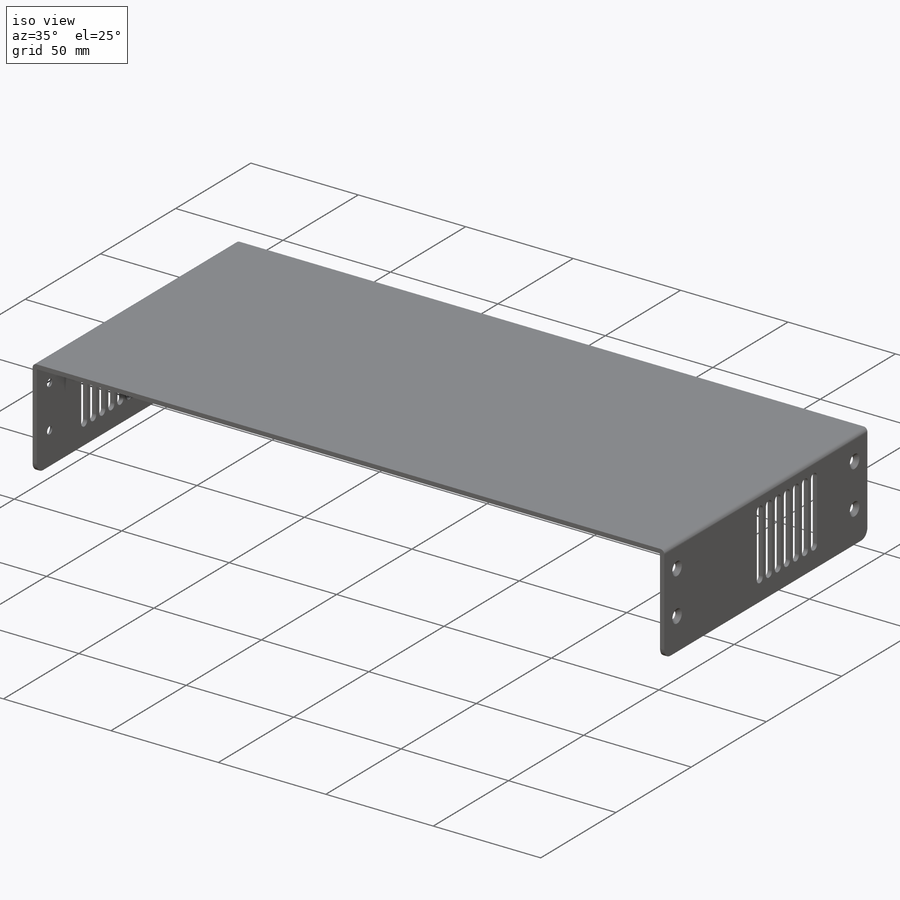
[diagram: iso view]
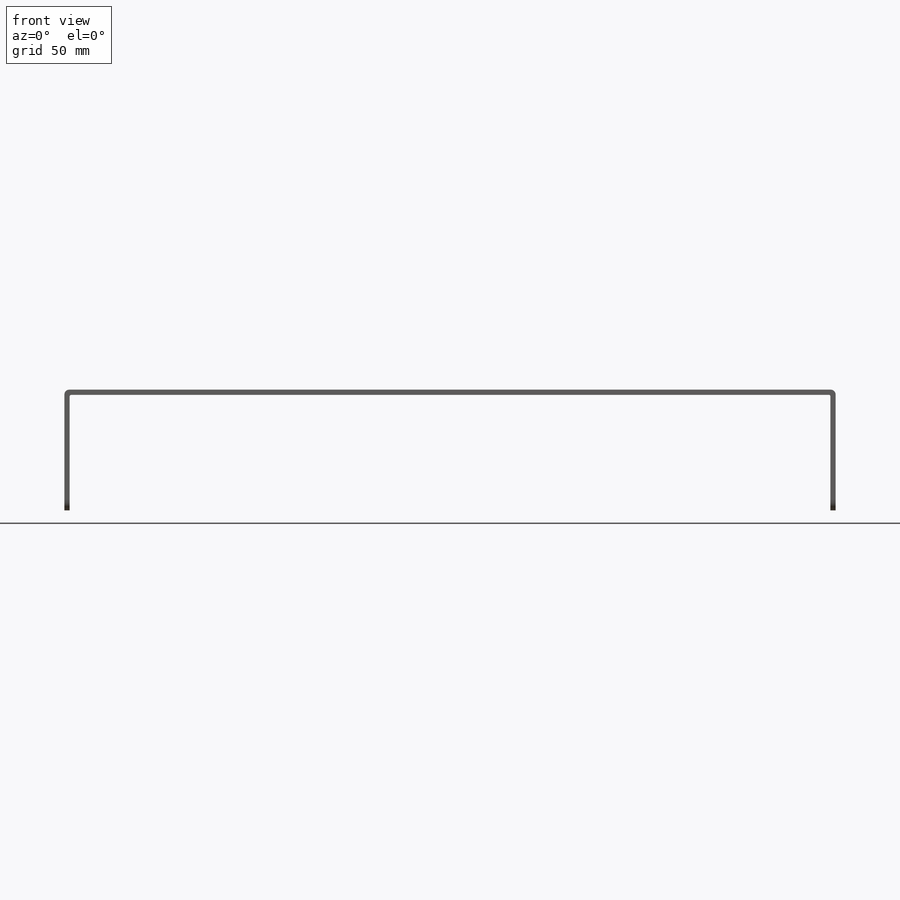
[diagram: front view]
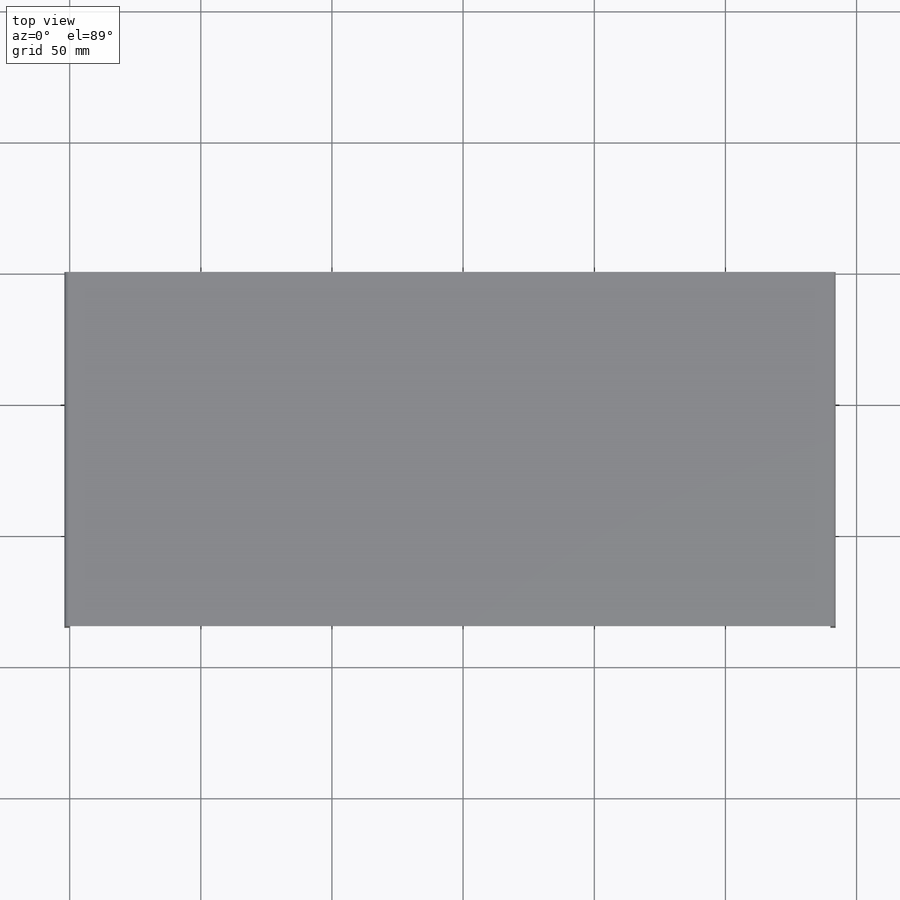
[diagram: top view]
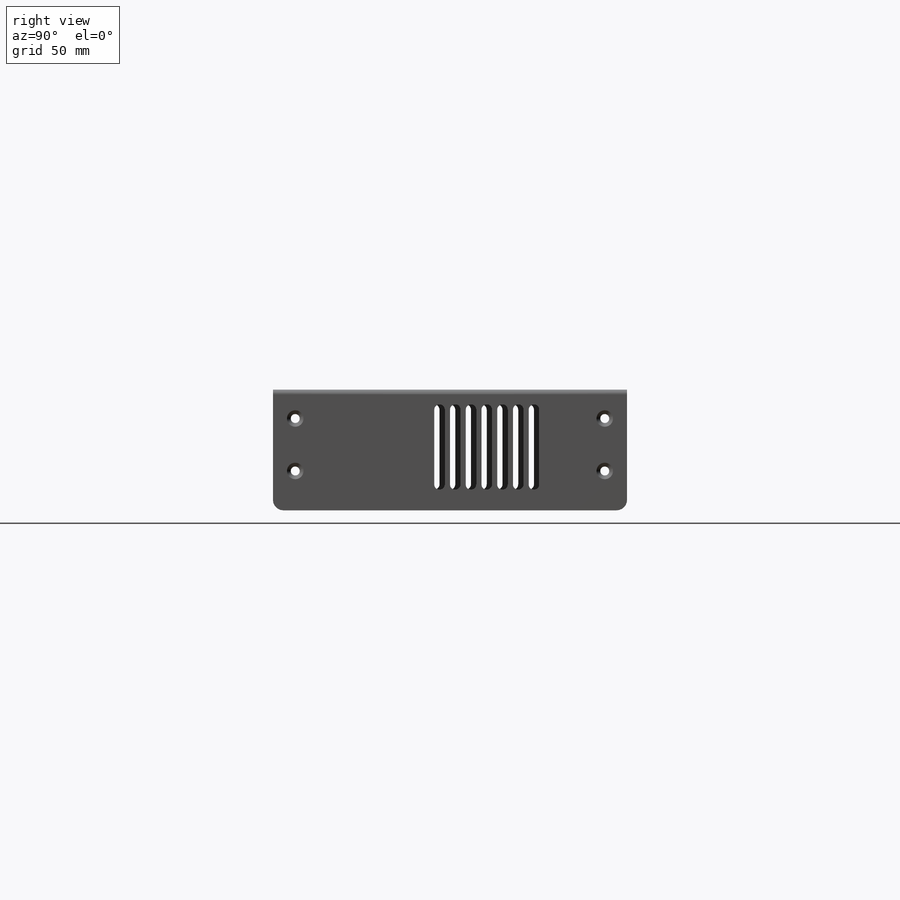
[diagram: right view]
SOLIDWORKS PART (.sldprt)
format: sldprt  version: not decoded by parser v0  size: 339,968 bytes
history: native  units: mm
features: sketch x7, hole x2, cut_extrude x2, pattern_linear x2, material x1, extrude x1, fillet x1 (+11 scaffold rows collapsed)
feature tree (27):
  scaffold x11  (default folders/planes/origin — collapsed)
  material  "Material <not specified>"
  sketch  "Sketch1"  dims[D5=0.5mm D6=1.8mm D1=44.0mm D2=290.0mm D3=2.0mm D4=2.0mm]
  extrude  "Boss-Extrude1"  Depth=135mm
  hole  "CSK for M3 Flat Head Machine Screw1"  Diameter=3.4mm Depth=5mm
  sketch  "Sketch3"
  sketch  "Sketch2"  dims[hole-wizard template sketch: 46 standard entries collapsed; hole parameters above]
  hole  "CSK for M3 Flat Head Machine Screw2"  Diameter=3.4mm Depth=5mm
  sketch  "Sketch5"
  sketch  "Sketch4"  dims[hole-wizard template sketch: 46 standard entries collapsed; hole parameters above]
  fillet  "Fillet1"  Radius=4mm
  sketch  "Sketch6"  dims[c1.D1=4.0mm c1.D2=31.5mm c1.D3=10.0mm c1.D4=10.0mm c2.D3=28.5mm]
  cut_extrude  "Cut-Extrude1"  Depth=10mm
  pattern_linear  "LPattern1"  Count1=13 Count2=1 Spacing1=6mm Spacing2=10mm
  sketch  "Sketch7"  dims[c1.D1=35.5mm c1.D2=8.0mm c1.D3=8.0mm c1.D4=4.0mm c2.D2=28.5mm]
  cut_extrude  "Cut-Extrude2"  Depth=10mm
  pattern_linear  "LPattern2"  Count1=7 Count2=1 Spacing1=6mm Spacing2=10mm
decode coverage: 13 of 15 modeling features carry decoded parameters
note: ~ marks probable driven/reference dimensions
note: suppression state not decoded; provenance and decode notes live in map.json
